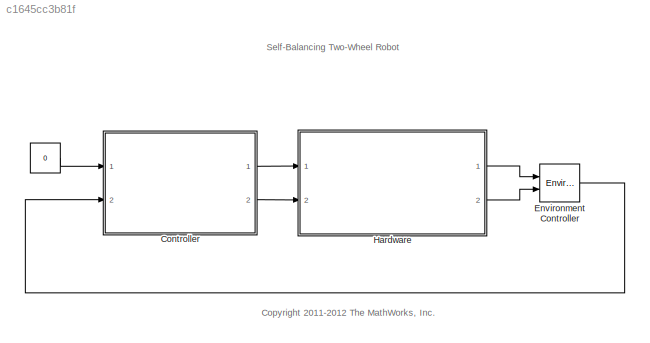
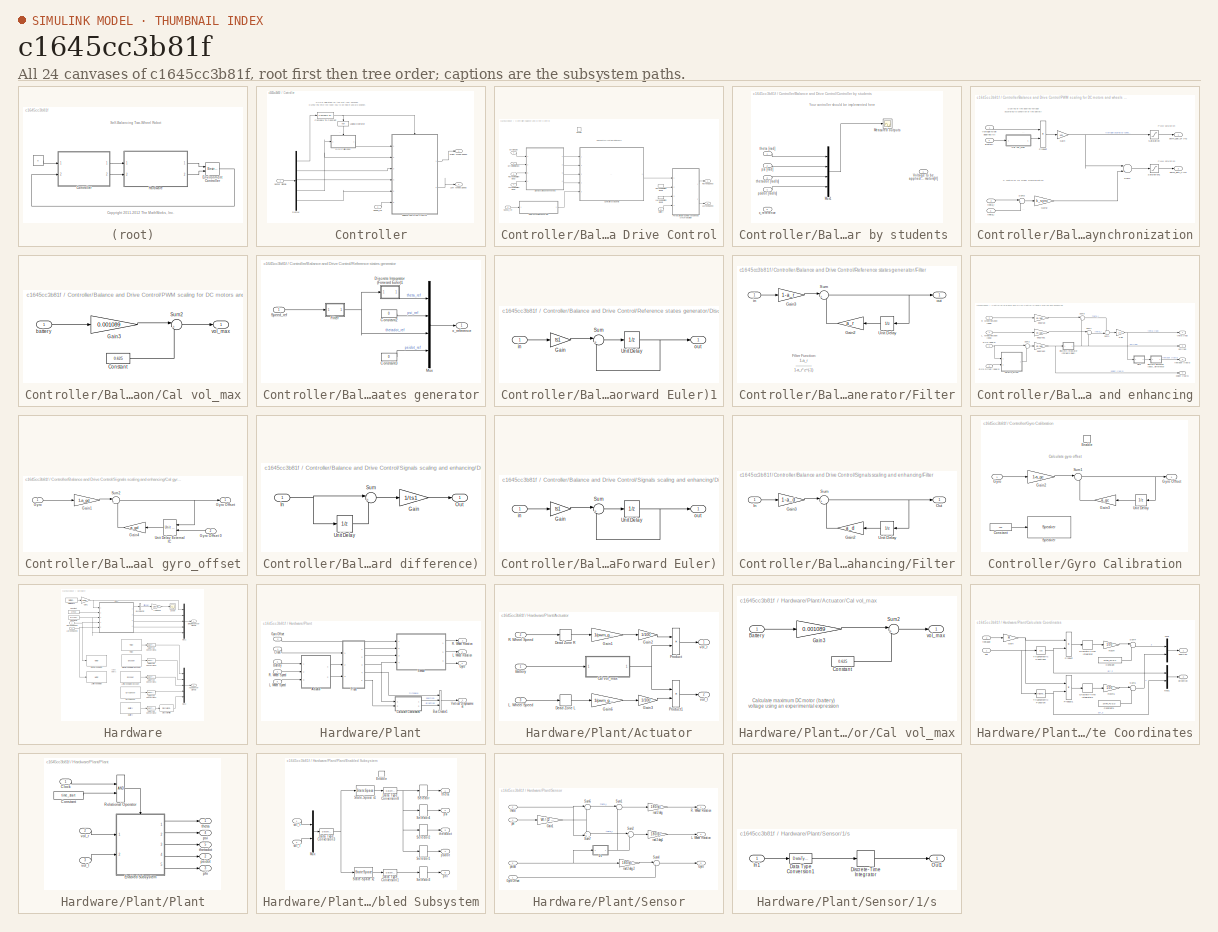
[diagram: thumbnail index - all 24 canvases of the model, root first then tree order]
MODEL slx_c1645cc3b81f
KIND model
BLOCK [Constant]       
  OutDataTypeStr = single
  SampleTime = 4*TS
  Value = 0
BLOCK [SubSystem] Controller
  Ports = [2, 2]
  RequestExecContextInheritance = off
  TreatAsAtomicUnit = on
BLOCK [SubSystem] Controller/Balance and Drive Control
  Ports = [6, 2, 1]
  RequestExecContextInheritance = off
BLOCK [Inport] Controller/Balance and Drive Control/Battery
  IconDisplay = Port number
  Port = 5
BLOCK [SubSystem] Controller/Balance and Drive Control/Controller by students 
  Ports = [5, 1]
  RequestExecContextInheritance = off
BLOCK [Scope] Controller/Balance and Drive Control/Controller by students /Measured outputs
  Floating = off
  NumInputPorts = 1
  Ports = [1]
  SaveName = ScopeData2
  ShowLegends = off
BLOCK [Mux] Controller/Balance and Drive Control/Controller by students /Mux1
  DisplayOption = bar
  Ports = [4, 1]
BLOCK [Outport] Controller/Balance and Drive Control/Controller by students /Voltage to be applied on both motors[V]
  IconDisplay = Port number
BLOCK [Inport] Controller/Balance and Drive Control/Controller by students /psi [rad]
  IconDisplay = Port number
  Port = 2
BLOCK [Inport] Controller/Balance and Drive Control/Controller by students /psidot [rad//s]
  IconDisplay = Port number
  Port = 4
BLOCK [Inport] Controller/Balance and Drive Control/Controller by students /theta [rad]
  IconDisplay = Port number
BLOCK [Inport] Controller/Balance and Drive Control/Controller by students /thetadot [rad//s]
  IconDisplay = Port number
  Port = 3
BLOCK [Inport] Controller/Balance and Drive Control/Controller by students /x_reference
  IconDisplay = Port number
  Port = 5
BLOCK [EnablePort] Controller/Balance and Drive Control/Enable
  Ports = []
BLOCK [Inport] Controller/Balance and Drive Control/Gyro Offset [deg//s]
  IconDisplay = Port number
BLOCK [Inport] Controller/Balance and Drive Control/Gyro [deg//s]
  IconDisplay = Port number
  Port = 2
BLOCK [Inport] Controller/Balance and Drive Control/L. Wheel Rotation [deg]
  IconDisplay = Port number
  Port = 4
BLOCK [InportShadow] Controller/Balance and Drive Control/L. Wheel Rotation [deg]1
  IconDisplay = Port number
  Port = 4
BLOCK [Outport] Controller/Balance and Drive Control/L. Wheel Speed
  IconDisplay = Port number
  Port = 2
BLOCK [SubSystem] Controller/Balance and Drive Control/PWM scaling for DC motors and wheels synchronization
  Ports = [4, 2]
  RequestExecContextInheritance = off
BLOCK [Inport] Controller/Balance and Drive Control/PWM scaling for DC motors and wheels synchronization/Battery
  IconDisplay = Port number
  Port = 4
BLOCK [SubSystem] Controller/Balance and Drive Control/PWM scaling for DC motors and wheels synchronization/Cal vol_max
  Ports = [1, 1]
  RequestExecContextInheritance = off
BLOCK [Constant] Controller/Balance and Drive Control/PWM scaling for DC motors and wheels synchronization/Cal vol_max/Constant
  AttributesFormatString = DataType = %<OutDataTypeStr>
  OutDataTypeStr = single
  Value = 0.625
BLOCK [Gain] Controller/Balance and Drive Control/PWM scaling for DC motors and wheels synchronization/Cal vol_max/Gain3
  Gain = 0.001089
  SaturateOnIntegerOverflow = off
BLOCK [Sum] Controller/Balance and Drive Control/PWM scaling for DC motors and wheels synchronization/Cal vol_max/Sum2
  IconShape = round
  InputSameDT = off
  Inputs = |+-
  Ports = [2, 1]
  SaturateOnIntegerOverflow = off
BLOCK [Inport] Controller/Balance and Drive Control/PWM scaling for DC motors and wheels synchronization/Cal vol_max/battery
  IconDisplay = Port number
BLOCK [Outport] Controller/Balance and Drive Control/PWM scaling for DC motors and wheels synchronization/Cal vol_max/vol_max
  IconDisplay = Port number
BLOCK [Gain] Controller/Balance and Drive Control/PWM scaling for DC motors and wheels synchronization/Gain
  Gain = 100
  SaturateOnIntegerOverflow = off
BLOCK [Gain] Controller/Balance and Drive Control/PWM scaling for DC motors and wheels synchronization/Gain2
  Gain = k_sync
  SaturateOnIntegerOverflow = off
BLOCK [Product] Controller/Balance and Drive Control/PWM scaling for DC motors and wheels synchronization/Product
  InputSameDT = off
  Inputs = */
  Ports = [2, 1]
  RndMeth = Simplest
  SaturateOnIntegerOverflow = off
BLOCK [Saturate] Controller/Balance and Drive Control/PWM scaling for DC motors and wheels synchronization/Saturation
  AttributesFormatString = max = %<UpperLimit>\nmin = %<LowerLimit>
  InputPortMap = u0
  LowerLimit = -100
  Ports = [1, 1]
  UpperLimit = 100
BLOCK [Saturate] Controller/Balance and Drive Control/PWM scaling for DC motors and wheels synchronization/Saturation1
  AttributesFormatString = max = %<UpperLimit>\nmin = %<LowerLimit>
  InputPortMap = u0
  LowerLimit = -100
  Ports = [1, 1]
  UpperLimit = 100
BLOCK [Sum] Controller/Balance and Drive Control/PWM scaling for DC motors and wheels synchronization/Sum1
  InputSameDT = off
  Inputs = |++
  Ports = [2, 1]
  SaturateOnIntegerOverflow = off
BLOCK [Sum] Controller/Balance and Drive Control/PWM scaling for DC motors and wheels synchronization/Sum2
  IconShape = round
  InputSameDT = off
  Inputs = |+-
  Ports = [2, 1]
  SaturateOnIntegerOverflow = off
BLOCK [Inport] Controller/Balance and Drive Control/PWM scaling for DC motors and wheels synchronization/Voltage to be applied [V]
  IconDisplay = Port number
BLOCK [Outport] Controller/Balance and Drive Control/PWM scaling for DC motors and wheels synchronization/pwm_duty_L [%]
  IconDisplay = Port number
  Port = 2
BLOCK [Outport] Controller/Balance and Drive Control/PWM scaling for DC motors and wheels synchronization/pwm_duty_R [%]
  IconDisplay = Port number
BLOCK [Inport] Controller/Balance and Drive Control/PWM scaling for DC motors and wheels synchronization/theta_l
  IconDisplay = Port number
  Port = 3
BLOCK [Inport] Controller/Balance and Drive Control/PWM scaling for DC motors and wheels synchronization/theta_r
  IconDisplay = Port number
  Port = 2
BLOCK [Inport] Controller/Balance and Drive Control/R. Wheel Rotation [deg]
  IconDisplay = Port number
  Port = 3
BLOCK [InportShadow] Controller/Balance and Drive Control/R. Wheel Rotation [deg]1
  IconDisplay = Port number
  Port = 3
BLOCK [Outport] Controller/Balance and Drive Control/R. Wheel Speed
  IconDisplay = Port number
BLOCK [SubSystem] Controller/Balance and Drive Control/Reference states generator
  Ports = [1, 1]
  RequestExecContextInheritance = off
BLOCK [Constant] Controller/Balance and Drive Control/Reference states generator/Constant2
  OutDataTypeStr = single
  Value = 0
  VectorParams1D = off
BLOCK [Constant] Controller/Balance and Drive Control/Reference states generator/Constant3
  OutDataTypeStr = single
  Value = 0
  VectorParams1D = off
BLOCK [SubSystem] Controller/Balance and Drive Control/Reference states generator/Discrete Integrator (Forward Euler)1
  Ports = [1, 1]
  RequestExecContextInheritance = off
BLOCK [Gain] Controller/Balance and Drive Control/Reference states generator/Discrete Integrator (Forward Euler)1/Gain
  Gain = ts1
  SaturateOnIntegerOverflow = off
BLOCK [Sum] Controller/Balance and Drive Control/Reference states generator/Discrete Integrator (Forward Euler)1/Sum
  IconShape = round
  InputSameDT = off
  Inputs = |++
  Ports = [2, 1]
  SaturateOnIntegerOverflow = off
BLOCK [UnitDelay] Controller/Balance and Drive Control/Reference states generator/Discrete Integrator (Forward Euler)1/Unit Delay
  SampleTime = -1
BLOCK [Inport] Controller/Balance and Drive Control/Reference states generator/Discrete Integrator (Forward Euler)1/in
  IconDisplay = Port number
BLOCK [Outport] Controller/Balance and Drive Control/Reference states generator/Discrete Integrator (Forward Euler)1/out
  IconDisplay = Port number
BLOCK [SubSystem] Controller/Balance and Drive Control/Reference states generator/Filter
  Ports = [1, 1]
  RequestExecContextInheritance = off
BLOCK [Gain] Controller/Balance and Drive Control/Reference states generator/Filter/Gain2
  Gain = a_r
  SaturateOnIntegerOverflow = off
BLOCK [Gain] Controller/Balance and Drive Control/Reference states generator/Filter/Gain3
  Gain = 1-a_r
  SaturateOnIntegerOverflow = off
BLOCK [Sum] Controller/Balance and Drive Control/Reference states generator/Filter/Sum
  IconShape = round
  InputSameDT = off
  Inputs = |++
  Ports = [2, 1]
  SaturateOnIntegerOverflow = off
BLOCK [UnitDelay] Controller/Balance and Drive Control/Reference states generator/Filter/Unit Delay
  SampleTime = -1
BLOCK [Inport] Controller/Balance and Drive Control/Reference states generator/Filter/in
  IconDisplay = Port number
BLOCK [Outport] Controller/Balance and Drive Control/Reference states generator/Filter/out
  IconDisplay = Port number
BLOCK [Mux] Controller/Balance and Drive Control/Reference states generator/Mux
  DisplayOption = bar
  Ports = [4, 1]
BLOCK [Inport] Controller/Balance and Drive Control/Reference states generator/Speed_ref
  IconDisplay = Port number
BLOCK [Outport] Controller/Balance and Drive Control/Reference states generator/x_reference
  IconDisplay = Port number
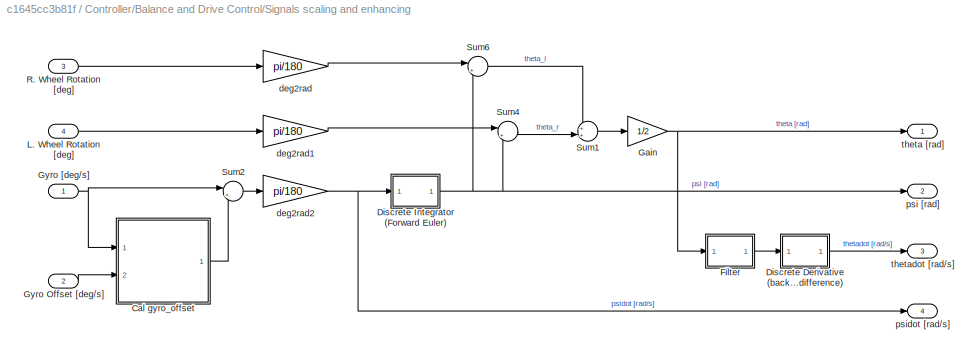
BLOCK [SubSystem] Controller/Balance and Drive Control/Signals scaling and enhancing
  Ports = [4, 4]
  RequestExecContextInheritance = off
BLOCK [SubSystem] Controller/Balance and Drive Control/Signals scaling and enhancing/Cal gyro_offset
  Ports = [2, 1]
  RequestExecContextInheritance = off
BLOCK [Gain] Controller/Balance and Drive Control/Signals scaling and enhancing/Cal gyro_offset/Gain1
  Gain = 1-a_gd
  SaturateOnIntegerOverflow = off
BLOCK [Gain] Controller/Balance and Drive Control/Signals scaling and enhancing/Cal gyro_offset/Gain4
  Gain = a_gd
  SaturateOnIntegerOverflow = off
BLOCK [Inport] Controller/Balance and Drive Control/Signals scaling and enhancing/Cal gyro_offset/Gyro
  IconDisplay = Port number
BLOCK [Outport] Controller/Balance and Drive Control/Signals scaling and enhancing/Cal gyro_offset/Gyro Offset
  IconDisplay = Port number
BLOCK [Inport] Controller/Balance and Drive Control/Signals scaling and enhancing/Cal gyro_offset/Gyro Offset 0
  IconDisplay = Port number
  Port = 2
BLOCK [Sum] Controller/Balance and Drive Control/Signals scaling and enhancing/Cal gyro_offset/Sum2
  IconShape = round
  InputSameDT = off
  Inputs = |++
  Ports = [2, 1]
  SaturateOnIntegerOverflow = off
BLOCK [Reference] Controller/Balance and Drive Control/Signals scaling and enhancing/Cal gyro_offset/Unit Delay External IC  REF=simulink/Additional Math
& Discrete/Additional
Discrete/Unit Delay
External IC
  Ports = [2, 1]
  SourceBlock = simulink/Additional Math\n& Discrete/Additional\nDiscrete/Unit Delay\nExternal IC
  SourceType = Unit Delay External Initial Condition
  tsamp = -1
BLOCK [SubSystem] Controller/Balance and Drive Control/Signals scaling and enhancing/Discrete Derivative (backward difference)
  Ports = [1, 1]
  RequestExecContextInheritance = off
BLOCK [Gain] Controller/Balance and Drive Control/Signals scaling and enhancing/Discrete Derivative (backward difference)/Gain
  Gain = 1/ts1
  SaturateOnIntegerOverflow = off
BLOCK [Inport] Controller/Balance and Drive Control/Signals scaling and enhancing/Discrete Derivative (backward difference)/In
  IconDisplay = Port number
BLOCK [Outport] Controller/Balance and Drive Control/Signals scaling and enhancing/Discrete Derivative (backward difference)/Out
  IconDisplay = Port number
BLOCK [Sum] Controller/Balance and Drive Control/Signals scaling and enhancing/Discrete Derivative (backward difference)/Sum
  IconShape = round
  InputSameDT = off
  Inputs = |+-
  Ports = [2, 1]
  SaturateOnIntegerOverflow = off
BLOCK [UnitDelay] Controller/Balance and Drive Control/Signals scaling and enhancing/Discrete Derivative (backward difference)/Unit Delay
  SampleTime = -1
BLOCK [SubSystem] Controller/Balance and Drive Control/Signals scaling and enhancing/Discrete Integrator (Forward Euler)
  Ports = [1, 1]
  RequestExecContextInheritance = off
BLOCK [Gain] Controller/Balance and Drive Control/Signals scaling and enhancing/Discrete Integrator (Forward Euler)/Gain
  Gain = ts1
  SaturateOnIntegerOverflow = off
BLOCK [Sum] Controller/Balance and Drive Control/Signals scaling and enhancing/Discrete Integrator (Forward Euler)/Sum
  IconShape = round
  InputSameDT = off
  Inputs = |++
  Ports = [2, 1]
  SaturateOnIntegerOverflow = off
BLOCK [UnitDelay] Controller/Balance and Drive Control/Signals scaling and enhancing/Discrete Integrator (Forward Euler)/Unit Delay
  SampleTime = -1
BLOCK [Inport] Controller/Balance and Drive Control/Signals scaling and enhancing/Discrete Integrator (Forward Euler)/in
  IconDisplay = Port number
BLOCK [Outport] Controller/Balance and Drive Control/Signals scaling and enhancing/Discrete Integrator (Forward Euler)/out
  IconDisplay = Port number
BLOCK [SubSystem] Controller/Balance and Drive Control/Signals scaling and enhancing/Filter
  Ports = [1, 1]
  RequestExecContextInheritance = off
BLOCK [Gain] Controller/Balance and Drive Control/Signals scaling and enhancing/Filter/Gain2
  Gain = a_d
  SaturateOnIntegerOverflow = off
BLOCK [Gain] Controller/Balance and Drive Control/Signals scaling and enhancing/Filter/Gain3
  Gain = 1-a_d
  SaturateOnIntegerOverflow = off
BLOCK [Inport] Controller/Balance and Drive Control/Signals scaling and enhancing/Filter/In
  IconDisplay = Port number
BLOCK [Outport] Controller/Balance and Drive Control/Signals scaling and enhancing/Filter/Out
  IconDisplay = Port number
BLOCK [Sum] Controller/Balance and Drive Control/Signals scaling and enhancing/Filter/Sum
  IconShape = round
  InputSameDT = off
  Inputs = |++
  Ports = [2, 1]
  SaturateOnIntegerOverflow = off
BLOCK [UnitDelay] Controller/Balance and Drive Control/Signals scaling and enhancing/Filter/Unit Delay
  SampleTime = -1
BLOCK [Gain] Controller/Balance and Drive Control/Signals scaling and enhancing/Gain
  Gain = 1/2
  SaturateOnIntegerOverflow = off
BLOCK [Inport] Controller/Balance and Drive Control/Signals scaling and enhancing/Gyro Offset [deg//s]
  IconDisplay = Port number
  Port = 2
BLOCK [Inport] Controller/Balance and Drive Control/Signals scaling and enhancing/Gyro [deg//s]
  IconDisplay = Port number
BLOCK [Inport] Controller/Balance and Drive Control/Signals scaling and enhancing/L. Wheel Rotation [deg]
  IconDisplay = Port number
  Port = 4
BLOCK [Inport] Controller/Balance and Drive Control/Signals scaling and enhancing/R. Wheel Rotation [deg]
  IconDisplay = Port number
  Port = 3
BLOCK [Sum] Controller/Balance and Drive Control/Signals scaling and enhancing/Sum1
  IconShape = round
  InputSameDT = off
  Inputs = ++|
  Ports = [2, 1]
  SaturateOnIntegerOverflow = off
BLOCK [Sum] Controller/Balance and Drive Control/Signals scaling and enhancing/Sum2
  IconShape = round
  InputSameDT = off
  Inputs = |+-
  Ports = [2, 1]
  SaturateOnIntegerOverflow = off
BLOCK [Sum] Controller/Balance and Drive Control/Signals scaling and enhancing/Sum4
  IconShape = round
  InputSameDT = off
  Inputs = |++
  Ports = [2, 1]
  SaturateOnIntegerOverflow = off
BLOCK [Sum] Controller/Balance and Drive Control/Signals scaling and enhancing/Sum6
  IconShape = round
  InputSameDT = off
  Inputs = |++
  Ports = [2, 1]
  SaturateOnIntegerOverflow = off
BLOCK [Gain] Controller/Balance and Drive Control/Signals scaling and enhancing/deg2rad
  Gain = pi/180
  SaturateOnIntegerOverflow = off
BLOCK [Gain] Controller/Balance and Drive Control/Signals scaling and enhancing/deg2rad1
  Gain = pi/180
  SaturateOnIntegerOverflow = off
BLOCK [Gain] Controller/Balance and Drive Control/Signals scaling and enhancing/deg2rad2
  Gain = pi/180
  SaturateOnIntegerOverflow = off
BLOCK [Outport] Controller/Balance and Drive Control/Signals scaling and enhancing/psi [rad]
  IconDisplay = Port number
  Port = 2
BLOCK [Outport] Controller/Balance and Drive Control/Signals scaling and enhancing/psidot [rad//s]
  IconDisplay = Port number
  Port = 4
BLOCK [Outport] Controller/Balance and Drive Control/Signals scaling and enhancing/theta [rad]
  IconDisplay = Port number
BLOCK [Outport] Controller/Balance and Drive Control/Signals scaling and enhancing/thetadot [rad//s]
  IconDisplay = Port number
  Port = 3
BLOCK [Inport] Controller/Balance and Drive Control/Speed_ref
  IconDisplay = Port number
  Port = 6
BLOCK [Reference] Controller/Compare To Constant  REF=simulink/Logic and Bit
Operations/Compare
To Constant
  OutDataTypeStr = boolean
  Ports = [1, 1]
  SourceBlock = simulink/Logic and Bit\nOperations/Compare\nTo Constant
  SourceType = Compare To Constant
  ZeroCross = on
  const = time_start
  relop = >=
BLOCK [Demux] Controller/Demux
  DisplayOption = bar
  Outputs = 5
  Ports = [1, 5]
BLOCK [SubSystem] Controller/Gyro Calibration
  Ports = [1, 1, 1]
  RequestExecContextInheritance = off
  TreatAsAtomicUnit = on
BLOCK [Constant] Controller/Gyro Calibration/Constant
  OutDataTypeStr = uint32
  SampleTime = 0.2
  Value = 440
BLOCK [EnablePort] Controller/Gyro Calibration/Enable
  Ports = []
BLOCK [Gain] Controller/Gyro Calibration/Gain2
  Gain = 1-a_gc
  SaturateOnIntegerOverflow = off
BLOCK [Gain] Controller/Gyro Calibration/Gain3
  Gain = a_gc
  SaturateOnIntegerOverflow = off
BLOCK [Inport] Controller/Gyro Calibration/Gyro
  IconDisplay = Port number
BLOCK [Outport] Controller/Gyro Calibration/Gyro Offset
  IconDisplay = Port number
BLOCK [Reference] Controller/Gyro Calibration/Speaker  REF=legonxtlib/Speaker
  Ports = [1]
  SourceBlock = legonxtlib/Speaker
  SourceType = LEGO MINDSTORMS NXT Speaker
  sinputMode = Frequency only
  sspeakerDuration = 100
  sspeakerFreq = 100
  sspeakerVolume = 10
BLOCK [Sum] Controller/Gyro Calibration/Sum1
  IconShape = round
  InputSameDT = off
  Inputs = |++
  Ports = [2, 1]
  SaturateOnIntegerOverflow = off
BLOCK [UnitDelay] Controller/Gyro Calibration/Unit Delay
  SampleTime = -1
BLOCK [Outport] Controller/Left Wheel Speed
  IconDisplay = Port number
  Port = 2
BLOCK [Logic] Controller/Logical Operator
  AllPortsSameDT = off
  Operator = NOT
  OutDataTypeStr = boolean
  Ports = [1, 1]
BLOCK [Outport] Controller/Right Wheel Speed
  IconDisplay = Port number
BLOCK [Inport] Controller/Sensor Signals
  IconDisplay = Port number
  Port = 2
BLOCK [Inport] Controller/Speed_ref
  IconDisplay = Port number
BLOCK [Reference] Environment Controller  REF=simulink/Signal
Routing/Environment
Controller
  Ports = [2, 1]
  SourceBlock = simulink/Signal\nRouting/Environment\nController
  SourceType = Environment Controller
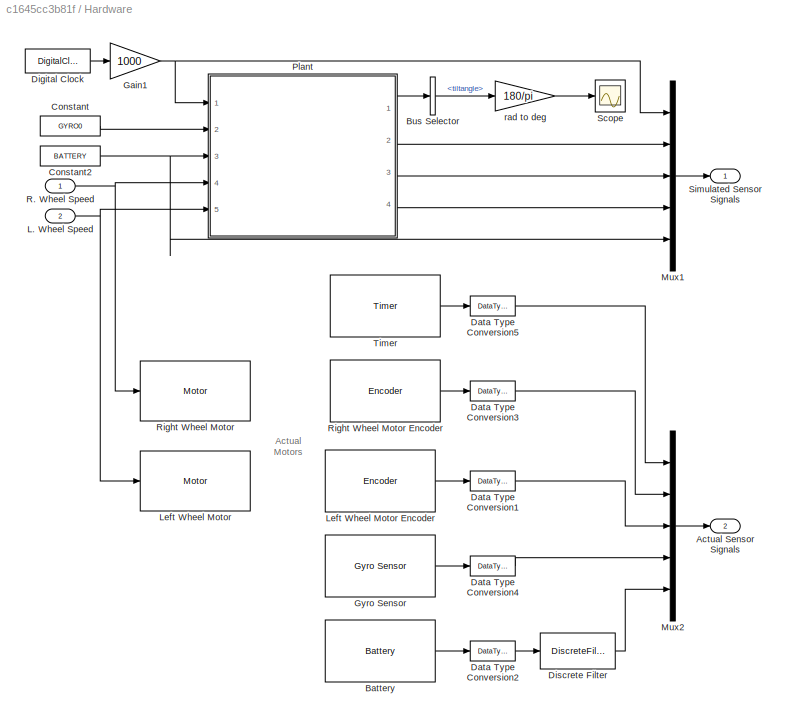
BLOCK [SubSystem] Hardware
  Ports = [2, 2]
  RequestExecContextInheritance = off
  VariantControl = DoSim
BLOCK [Outport] Hardware/Actual Sensor Signals
  IconDisplay = Port number
  Port = 2
BLOCK [Reference] Hardware/Battery  REF=legonxtlib/Battery
  Ports = [0, 1]
  SourceBlock = legonxtlib/Battery
  SourceType = LEGO MINDSTORMS NXT Battery
  sampleTime = ts1
BLOCK [BusSelector] Hardware/Bus Selector
  OutputSignals = tiltangle
  Ports = [1, 1]
BLOCK [Constant] Hardware/Constant
  OutDataTypeStr = single
  Value = GYRO0
BLOCK [Constant] Hardware/Constant2
  OutDataTypeStr = single
  Value = BATTERY
BLOCK [DataTypeConversion] Hardware/Data Type Conversion1
  OutDataTypeStr = single
  RndMeth = Simplest
  SaturateOnIntegerOverflow = off
BLOCK [DataTypeConversion] Hardware/Data Type Conversion2
  OutDataTypeStr = single
  RndMeth = Simplest
  SaturateOnIntegerOverflow = off
BLOCK [DataTypeConversion] Hardware/Data Type Conversion3
  OutDataTypeStr = single
  RndMeth = Simplest
  SaturateOnIntegerOverflow = off
BLOCK [DataTypeConversion] Hardware/Data Type Conversion4
  OutDataTypeStr = single
  RndMeth = Simplest
  SaturateOnIntegerOverflow = off
BLOCK [DataTypeConversion] Hardware/Data Type Conversion5
  OutDataTypeStr = single
  RndMeth = Simplest
  SaturateOnIntegerOverflow = off
BLOCK [DigitalClock] Hardware/Digital Clock
  SampleTime = 4*TS
BLOCK [DiscreteFilter] Hardware/Discrete Filter
  Denominator = [1 -a_b]
  InputPortMap = u0
  Numerator = [1-a_b]
  Ports = [1, 1]
BLOCK [Gain] Hardware/Gain1
  Gain = 1000
  OutDataTypeStr = single
  SaturateOnIntegerOverflow = off
BLOCK [Reference] Hardware/Gyro Sensor  REF=legonxtlib/Gyro Sensor
  Ports = [0, 1]
  SourceBlock = legonxtlib/Gyro Sensor
  SourceType = LEGO MINDSTORMS NXT Gyro Sensor
  offset = 600
  outputMode = Raw A/D (0 - 1023)
  portNumber = 4
  sampleTime = ts1
BLOCK [Inport] Hardware/L. Wheel Speed
  IconDisplay = Port number
  Port = 2
BLOCK [Reference] Hardware/Left Wheel Motor  REF=legonxtlib/Motor
  Ports = [1]
  SourceBlock = legonxtlib/Motor
  SourceType = LEGO MINDSTORMS NXT Motor
  sportNumber = C
  sstopAction = Brake
BLOCK [Reference] Hardware/Left Wheel Motor Encoder  REF=legonxtlib/Encoder
  Ports = [0, 1]
  SourceBlock = legonxtlib/Encoder
  SourceType = LEGO MINDSTORMS NXT Encoder
  opMode = No reset
  portNumber = C
  sampleTime = ts1
BLOCK [Mux] Hardware/Mux1
  DisplayOption = bar
  Inputs = 5
  Ports = [5, 1]
BLOCK [Mux] Hardware/Mux2
  DisplayOption = bar
  Inputs = 5
  Ports = [5, 1]
BLOCK [SubSystem] Hardware/Plant
  Ports = [5, 4]
  RequestExecContextInheritance = off
BLOCK [SubSystem] Hardware/Plant/Actuator
  Ports = [3, 2]
  RequestExecContextInheritance = off
BLOCK [Inport] Hardware/Plant/Actuator/Battery
  IconDisplay = Port number
BLOCK [SubSystem] Hardware/Plant/Actuator/Cal vol_max
  Ports = [1, 1]
  RequestExecContextInheritance = off
BLOCK [Inport] Hardware/Plant/Actuator/Cal vol_max/Battery
  IconDisplay = Port number
BLOCK [Constant] Hardware/Plant/Actuator/Cal vol_max/Constant
  OutDataTypeStr = single
  Value = 0.625
BLOCK [Gain] Hardware/Plant/Actuator/Cal vol_max/Gain3
  Gain = 0.001089
  SaturateOnIntegerOverflow = off
BLOCK [Sum] Hardware/Plant/Actuator/Cal vol_max/Sum2
  IconShape = round
  InputSameDT = off
  Inputs = |+-
  Ports = [2, 1]
  SaturateOnIntegerOverflow = off
BLOCK [Outport] Hardware/Plant/Actuator/Cal vol_max/vol_max
  IconDisplay = Port number
BLOCK [DeadZone] Hardware/Plant/Actuator/Dead Zone L
  AttributesFormatString = start=%<LowerValue>\nend=%<UpperValue>
  LowerValue = -pwm_offset
  UpperValue = pwm_offset
BLOCK [DeadZone] Hardware/Plant/Actuator/Dead Zone R
  AttributesFormatString = start=%<LowerValue>\nend=%<UpperValue>
  LowerValue = -pwm_offset
  UpperValue = pwm_offset
BLOCK [Gain] Hardware/Plant/Actuator/Gain1
  Gain = 1/pwm_gain
  SaturateOnIntegerOverflow = off
BLOCK [Gain] Hardware/Plant/Actuator/Gain2
  Gain = 1/100
  SaturateOnIntegerOverflow = off
BLOCK [Gain] Hardware/Plant/Actuator/Gain3
  Gain = 1/100
  SaturateOnIntegerOverflow = off
BLOCK [Gain] Hardware/Plant/Actuator/Gain6
  Gain = 1/pwm_gain
  SaturateOnIntegerOverflow = off
BLOCK [Inport] Hardware/Plant/Actuator/L. Wheel Speed
  IconDisplay = Port number
  Port = 3
BLOCK [Product] Hardware/Plant/Actuator/Product
  InputSameDT = off
  OutDataTypeStr = Inherit: Inherit via internal rule
  Ports = [2, 1]
  RndMeth = Simplest
  SaturateOnIntegerOverflow = off
BLOCK [Product] Hardware/Plant/Actuator/Product1
  InputSameDT = off
  OutDataTypeStr = Inherit: Inherit via internal rule
  Ports = [2, 1]
  RndMeth = Simplest
  SaturateOnIntegerOverflow = off
BLOCK [Inport] Hardware/Plant/Actuator/R. Wheel Speed
  IconDisplay = Port number
  Port = 2
BLOCK [Outport] Hardware/Plant/Actuator/vol_l
  IconDisplay = Port number
  Port = 2
BLOCK [Outport] Hardware/Plant/Actuator/vol_r
  IconDisplay = Port number
BLOCK [Inport] Hardware/Plant/Battery
  IconDisplay = Port number
  Port = 3
BLOCK [BusCreator] Hardware/Plant/Bus Creator1
  DisplayOption = bar
  Inputs = 3
  Ports = [3, 1]
BLOCK [SubSystem] Hardware/Plant/Calculate Coordinates
  Ports = [2, 2]
  RequestExecContextInheritance = off
BLOCK [Constant] Hardware/Plant/Calculate Coordinates/Constant
  AttributesFormatString = DataType = %<OutDataTypeStr>
  OutDataTypeStr = double
  Value = START_POS(1)
BLOCK [Constant] Hardware/Plant/Calculate Coordinates/Constant1
  AttributesFormatString = DataType = %<OutDataTypeStr>
  OutDataTypeStr = double
  Value = START_POS(2)
BLOCK [DiscreteIntegrator] Hardware/Plant/Calculate Coordinates/Discrete-Time Integrator
  ICPrevOutput = DiscIntNeverNeededParam
  ICPrevScaledInput = DiscIntNeverNeededParam
  Ports = [1, 1]
  SampleTime = 4*TS
BLOCK [DiscreteIntegrator] Hardware/Plant/Calculate Coordinates/Discrete-Time Integrator1
  ICPrevOutput = DiscIntNeverNeededParam
  ICPrevScaledInput = DiscIntNeverNeededParam
  Ports = [1, 1]
  SampleTime = 4*TS
BLOCK [Gain] Hardware/Plant/Calculate Coordinates/Gain
  Gain = R
  OutDataTypeStr = Inherit: Inherit via internal rule
  ParamDataTypeStr = Inherit: Inherit via internal rule
  SaturateOnIntegerOverflow = off
BLOCK [Mux] Hardware/Plant/Calculate Coordinates/Mux
  DisplayOption = bar
  Inputs = 2
  Ports = [2, 1]
BLOCK [Mux] Hardware/Plant/Calculate Coordinates/Mux1
  DisplayOption = bar
  Inputs = 2
  Ports = [2, 1]
BLOCK [Product] Hardware/Plant/Calculate Coordinates/Product
  InputSameDT = off
  OutDataTypeStr = double
  Ports = [2, 1]
  RndMeth = Simplest
  SaturateOnIntegerOverflow = off
BLOCK [Product] Hardware/Plant/Calculate Coordinates/Product1
  InputSameDT = off
  OutDataTypeStr = double
  Ports = [2, 1]
  RndMeth = Simplest
  SaturateOnIntegerOverflow = off
BLOCK [Sum] Hardware/Plant/Calculate Coordinates/Sum1
  IconShape = round
  InputSameDT = off
  Inputs = |++
  OutDataTypeStr = Inherit: Inherit via internal rule
  Ports = [2, 1]
  SaturateOnIntegerOverflow = off
BLOCK [Sum] Hardware/Plant/Calculate Coordinates/Sum4
  IconShape = round
  InputSameDT = off
  Inputs = |++
  OutDataTypeStr = Inherit: Inherit via internal rule
  Ports = [2, 1]
  SaturateOnIntegerOverflow = off
BLOCK [Trigonometry] Hardware/Plant/Calculate Coordinates/Trigonometric Function
  Ports = [1, 1]
BLOCK [Trigonometry] Hardware/Plant/Calculate Coordinates/Trigonometric Function1
  Operator = cos
  Ports = [1, 1]
BLOCK [Outport] Hardware/Plant/Calculate Coordinates/direction
  IconDisplay = Port number
  Port = 2
BLOCK [Gain] Hardware/Plant/Calculate Coordinates/m2cm
  Gain = 100
  OutDataTypeStr = Inherit: Inherit via internal rule
  ParamDataTypeStr = Inherit: Inherit via internal rule
  SaturateOnIntegerOverflow = off
BLOCK [Gain] Hardware/Plant/Calculate Coordinates/m2cm1
  Gain = 100
  OutDataTypeStr = Inherit: Inherit via internal rule
  ParamDataTypeStr = Inherit: Inherit via internal rule
  SaturateOnIntegerOverflow = off
BLOCK [Inport] Hardware/Plant/Calculate Coordinates/phi
  IconDisplay = Port number
BLOCK [Outport] Hardware/Plant/Calculate Coordinates/position
  IconDisplay = Port number
BLOCK [Inport] Hardware/Plant/Calculate Coordinates/thetadot
  IconDisplay = Port number
  Port = 2
BLOCK [Inport] Hardware/Plant/Clock
  IconDisplay = Port number
BLOCK [Outport] Hardware/Plant/Gyro
  IconDisplay = Port number
  Port = 4
BLOCK [Inport] Hardware/Plant/Gyro Offset
  IconDisplay = Port number
  Port = 2
BLOCK [Outport] Hardware/Plant/L. Wheel Rotation
  IconDisplay = Port number
  Port = 3
BLOCK [Inport] Hardware/Plant/L. Wheel Speed
  IconDisplay = Port number
  Port = 5
BLOCK [SubSystem] Hardware/Plant/Plant
  Ports = [3, 5]
  RequestExecContextInheritance = off
BLOCK [Inport] Hardware/Plant/Plant/Clock
  IconDisplay = Port number
BLOCK [Constant] Hardware/Plant/Plant/Constant
  OutDataTypeStr = single
  Value = time_start
BLOCK [SubSystem] Hardware/Plant/Plant/Enabled Subsystem
  MinAlgLoopOccurrences = on
  Ports = [2, 5, 1]
  RequestExecContextInheritance = off
  TreatAsAtomicUnit = on
BLOCK [DataTypeConversion] Hardware/Plant/Plant/Enabled Subsystem/Data Type Conversion1
  OutDataTypeStr = single
  RndMeth = Nearest
  SaturateOnIntegerOverflow = off
BLOCK [DataTypeConversion] Hardware/Plant/Plant/Enabled Subsystem/Data Type Conversion3
  OutDataTypeStr = double
  RndMeth = Nearest
  SaturateOnIntegerOverflow = off
BLOCK [DataTypeConversion] Hardware/Plant/Plant/Enabled Subsystem/Data Type Conversion8
  OutDataTypeStr = single
  RndMeth = Nearest
  SaturateOnIntegerOverflow = off
BLOCK [EnablePort] Hardware/Plant/Plant/Enabled Subsystem/Enable
  Ports = []
BLOCK [Mux] Hardware/Plant/Plant/Enabled Subsystem/Mux
  DisplayOption = bar
  Inputs = 2
  Ports = [2, 1]
BLOCK [Selector] Hardware/Plant/Plant/Enabled Subsystem/Selector
  InputPortWidth = 4
  Ports = [1, 1]
BLOCK [Selector] Hardware/Plant/Plant/Enabled Subsystem/Selector1
  Indices = 4
  InputPortWidth = 4
  Ports = [1, 1]
BLOCK [Selector] Hardware/Plant/Plant/Enabled Subsystem/Selector2
  Indices = 3
  InputPortWidth = 4
  Ports = [1, 1]
BLOCK [Selector] Hardware/Plant/Plant/Enabled Subsystem/Selector3
  InputPortWidth = 2
  Ports = [1, 1]
BLOCK [Selector] Hardware/Plant/Plant/Enabled Subsystem/Selector4
  Indices = 2
  InputPortWidth = 4
  Ports = [1, 1]
BLOCK [StateSpace] Hardware/Plant/Plant/Enabled Subsystem/State-Space x1
  A = A1
  B = B1
  C = C1
  D = D1
  Ports = [1, 1]
  X0 = X1IV
BLOCK [StateSpace] Hardware/Plant/Plant/Enabled Subsystem/State-Space x2
  A = A2
  B = B2
  C = C2
  D = D2
  Ports = [1, 1]
  X0 = X2IV
BLOCK [Outport] Hardware/Plant/Plant/Enabled Subsystem/phi
  IconDisplay = Port number
  InitialOutput = 0
  Port = 5
BLOCK [Outport] Hardware/Plant/Plant/Enabled Subsystem/psi
  IconDisplay = Port number
  InitialOutput = 0
  Port = 2
BLOCK [Outport] Hardware/Plant/Plant/Enabled Subsystem/psidot
  IconDisplay = Port number
  InitialOutput = 0
  Port = 4
BLOCK [Outport] Hardware/Plant/Plant/Enabled Subsystem/theta
  IconDisplay = Port number
  InitialOutput = 0
BLOCK [Outport] Hardware/Plant/Plant/Enabled Subsystem/thetadot
  IconDisplay = Port number
  InitialOutput = 0
  Port = 3
BLOCK [Inport] Hardware/Plant/Plant/Enabled Subsystem/vol_l
  IconDisplay = Port number
  Port = 2
BLOCK [Inport] Hardware/Plant/Plant/Enabled Subsystem/vol_r
  IconDisplay = Port number
BLOCK [RelationalOperator] Hardware/Plant/Plant/Relational Operator
  InputSameDT = off
  OutDataTypeStr = boolean
  Ports = [2, 1]
BLOCK [Outport] Hardware/Plant/Plant/phi
  IconDisplay = Port number
  Port = 3
BLOCK [Outport] Hardware/Plant/Plant/psi
  IconDisplay = Port number
  Port = 4
BLOCK [Outport] Hardware/Plant/Plant/psidot
  IconDisplay = Port number
  Port = 2
BLOCK [Outport] Hardware/Plant/Plant/theta
  IconDisplay = Port number
BLOCK [Outport] Hardware/Plant/Plant/thetadot
  IconDisplay = Port number
  Port = 5
BLOCK [Inport] Hardware/Plant/Plant/vol_l
  IconDisplay = Port number
  Port = 3
BLOCK [Inport] Hardware/Plant/Plant/vol_r
  IconDisplay = Port number
  Port = 2
BLOCK [Outport] Hardware/Plant/R. Wheel Rotation
  IconDisplay = Port number
  Port = 2
BLOCK [Inport] Hardware/Plant/R. Wheel Speed
  IconDisplay = Port number
  Port = 4
BLOCK [SubSystem] Hardware/Plant/Sensor
  Ports = [4, 3]
  RequestExecContextInheritance = off
BLOCK [SubSystem] Hardware/Plant/Sensor/1//s
  Ports = [1, 1]
  RequestExecContextInheritance = off
  ShowPortLabels = SignalName
BLOCK [DataTypeConversion] Hardware/Plant/Sensor/1//s/Data Type Conversion1
  AttributesFormatString = Round = %<RndMeth>
  OutDataTypeStr = double
  RndMeth = Nearest
  SaturateOnIntegerOverflow = off
BLOCK [DiscreteIntegrator] Hardware/Plant/Sensor/1//s/Discrete-Time Integrator
  ICPrevOutput = DiscIntNeverNeededParam
  ICPrevScaledInput = DiscIntNeverNeededParam
  Ports = [1, 1]
  SampleTime = 4*TS
  gainval = 1
BLOCK [Inport] Hardware/Plant/Sensor/1//s/In1
  IconDisplay = Port number
BLOCK [Outport] Hardware/Plant/Sensor/1//s/Out1
  IconDisplay = Port number
BLOCK [Gain] Hardware/Plant/Sensor/Gain1
  Gain = W / (2 * R)
  OutDataTypeStr = Inherit: Inherit via internal rule
  ParamDataTypeStr = Inherit: Inherit via internal rule
  SaturateOnIntegerOverflow = off
BLOCK [Outport] Hardware/Plant/Sensor/Gyro
  IconDisplay = Port number
  Port = 3
BLOCK [Inport] Hardware/Plant/Sensor/Gyro Offset
  IconDisplay = Port number
BLOCK [Outport] Hardware/Plant/Sensor/L. Wheel Rotation
  IconDisplay = Port number
  Port = 2
BLOCK [Outport] Hardware/Plant/Sensor/R. Wheel Rotation
  IconDisplay = Port number
BLOCK [Sum] Hardware/Plant/Sensor/Sum1
  IconShape = round
  InputSameDT = off
  Inputs = |+-
  OutDataTypeStr = Inherit: Inherit via internal rule
  Ports = [2, 1]
  SaturateOnIntegerOverflow = off
BLOCK [Sum] Hardware/Plant/Sensor/Sum2
  IconShape = round
  InputSameDT = off
  Inputs = |+-
  OutDataTypeStr = Inherit: Inherit via internal rule
  Ports = [2, 1]
  SaturateOnIntegerOverflow = off
BLOCK [Sum] Hardware/Plant/Sensor/Sum4
  IconShape = round
  InputSameDT = off
  Inputs = |++
  OutDataTypeStr = Inherit: Inherit via internal rule
  Ports = [2, 1]
  SaturateOnIntegerOverflow = off
BLOCK [Sum] Hardware/Plant/Sensor/Sum6
  IconShape = round
  InputSameDT = off
  Inputs = |+-
  OutDataTypeStr = Inherit: Inherit via internal rule
  Ports = [2, 1]
  SaturateOnIntegerOverflow = off
BLOCK [Sum] Hardware/Plant/Sensor/Sum7
  IconShape = round
  InputSameDT = off
  Inputs = ++|
  OutDataTypeStr = Inherit: Inherit via internal rule
  Ports = [2, 1]
  SaturateOnIntegerOverflow = off
BLOCK [Inport] Hardware/Plant/Sensor/phi
  IconDisplay = Port number
  Port = 4
BLOCK [Inport] Hardware/Plant/Sensor/psidot
  IconDisplay = Port number
  Port = 3
BLOCK [Gain] Hardware/Plant/Sensor/rad 2 deg
  Gain = 180/pi
  OutDataTypeStr = single
  ParamDataTypeStr = Inherit: Inherit via internal rule
  SaturateOnIntegerOverflow = off
BLOCK [Gain] Hardware/Plant/Sensor/rad 2 deg 2
  Gain = 180/pi
  OutDataTypeStr = Inherit: Inherit via internal rule
  ParamDataTypeStr = Inherit: Inherit via internal rule
  SaturateOnIntegerOverflow = off
BLOCK [Gain] Hardware/Plant/Sensor/rad 2 deg1
  Gain = 180/pi
  OutDataTypeStr = single
  ParamDataTypeStr = Inherit: Inherit via internal rule
  SaturateOnIntegerOverflow = off
BLOCK [Inport] Hardware/Plant/Sensor/theta
  IconDisplay = Port number
  Port = 2
BLOCK [Outport] Hardware/Plant/Vertical Displacement
  IconDisplay = Port number
BLOCK [Inport] Hardware/R. Wheel Speed
  IconDisplay = Port number
BLOCK [Reference] Hardware/Right Wheel Motor  REF=legonxtlib/Motor
  Ports = [1]
  SourceBlock = legonxtlib/Motor
  SourceType = LEGO MINDSTORMS NXT Motor
  sportNumber = B
  sstopAction = Brake
BLOCK [Reference] Hardware/Right Wheel Motor Encoder  REF=legonxtlib/Encoder
  Ports = [0, 1]
  SourceBlock = legonxtlib/Encoder
  SourceType = LEGO MINDSTORMS NXT Encoder
  opMode = No reset
  portNumber = B
  sampleTime = ts1
BLOCK [Scope] Hardware/Scope
  DataFormat = StructureWithTime
  Floating = off
  LimitDataPoints = off
  NumInputPorts = 1
  Ports = [1]
  SampleTime = 0
  ShowLegends = off
  YMax = 8
  YMin = -8
  ZoomMode = yonly
BLOCK [Outport] Hardware/Simulated Sensor Signals
  IconDisplay = Port number
BLOCK [Reference] Hardware/Timer  REF=legonxtlib/Timer
  Ports = [0, 1]
  SourceBlock = legonxtlib/Timer
  SourceType = LEGO MINDSTORMS NXT Timer
  sampleTime = ts1
BLOCK [Gain] Hardware/rad to deg
  Gain = 180/pi
  OutDataTypeStr = Inherit: Inherit via internal rule
  ParamDataTypeStr = Inherit: Inherit via internal rule
  SaturateOnIntegerOverflow = off
ANNOTATION (root): <copyright redacted>
ANNOTATION (root): Self-Balancing Two-Wheel Robot
ANNOTATION Controller: Gyro is calibrating for the first four seconds. During this time the robot has to be held in upward position.
ANNOTATION Controller/Balance and Drive Control: Implement your controller into this block
ANNOTATION Controller/Balance and Drive Control/Controller by students : Your controller should be implemented here
ANNOTATION Controller/Balance and Drive Control/PWM scaling for DC motors and wheels synchronization: P controller for wheel synchronization
ANNOTATION Controller/Balance and Drive Control/PWM scaling for DC motors and wheels synchronization: PWM saturation
ANNOTATION Controller/Balance and Drive Control/PWM scaling for DC motors and wheels synchronization: Scaling of the applied voltage according to condition of the battery
ANNOTATION Controller/Balance and Drive Control/Reference states generator/Filter: Filter Function: 1-a_r ---------------- 1-a_r*z^(-1)
ANNOTATION Controller/Gyro Calibration: Calculate gyro offset
ANNOTATION Hardware: Actual Motors
ANNOTATION Hardware/Plant/Actuator/Cal vol_max: Calculate maximum DC motor (battery) voltage using an experimental expression
LINE       :1 -> Controller:1
LINE Controller/Balance and Drive Control/Battery:1 -> Controller/Balance and Drive Control/PWM scaling for DC motors and wheels synchronization:4
LINE Controller/Balance and Drive Control/Controller by students /Mux1:1 -> Controller/Balance and Drive Control/Controller by students /Measured outputs:1
LINE Controller/Balance and Drive Control/Controller by students /psi [rad]:1 -> Controller/Balance and Drive Control/Controller by students /Mux1:2
LINE Controller/Balance and Drive Control/Controller by students /psidot [rad//s]:1 -> Controller/Balance and Drive Control/Controller by students /Mux1:4
LINE Controller/Balance and Drive Control/Controller by students /theta [rad]:1 -> Controller/Balance and Drive Control/Controller by students /Mux1:1
LINE Controller/Balance and Drive Control/Controller by students /thetadot [rad//s]:1 -> Controller/Balance and Drive Control/Controller by students /Mux1:3
LINE Controller/Balance and Drive Control/Controller by students :1 -> Controller/Balance and Drive Control/PWM scaling for DC motors and wheels synchronization:1
LINE Controller/Balance and Drive Control/Gyro Offset [deg//s]:1 -> Controller/Balance and Drive Control/Signals scaling and enhancing:2
LINE Controller/Balance and Drive Control/Gyro [deg//s]:1 -> Controller/Balance and Drive Control/Signals scaling and enhancing:1
LINE Controller/Balance and Drive Control/L. Wheel Rotation [deg]1:1 -> Controller/Balance and Drive Control/PWM scaling for DC motors and wheels synchronization:3
LINE Controller/Balance and Drive Control/L. Wheel Rotation [deg]:1 -> Controller/Balance and Drive Control/Signals scaling and enhancing:4
LINE Controller/Balance and Drive Control/PWM scaling for DC motors and wheels synchronization/Battery:1 -> Controller/Balance and Drive Control/PWM scaling for DC motors and wheels synchronization/Cal vol_max:1
LINE Controller/Balance and Drive Control/PWM scaling for DC motors and wheels synchronization/Cal vol_max/Constant:1 -> Controller/Balance and Drive Control/PWM scaling for DC motors and wheels synchronization/Cal vol_max/Sum2:2
LINE Controller/Balance and Drive Control/PWM scaling for DC motors and wheels synchronization/Cal vol_max/Gain3:1 -> Controller/Balance and Drive Control/PWM scaling for DC motors and wheels synchronization/Cal vol_max/Sum2:1
LINE Controller/Balance and Drive Control/PWM scaling for DC motors and wheels synchronization/Cal vol_max/Sum2:1 -> Controller/Balance and Drive Control/PWM scaling for DC motors and wheels synchronization/Cal vol_max/vol_max:1
LINE Controller/Balance and Drive Control/PWM scaling for DC motors and wheels synchronization/Cal vol_max/battery:1 -> Controller/Balance and Drive Control/PWM scaling for DC motors and wheels synchronization/Cal vol_max/Gain3:1
LINE Controller/Balance and Drive Control/PWM scaling for DC motors and wheels synchronization/Cal vol_max:1 -> Controller/Balance and Drive Control/PWM scaling for DC motors and wheels synchronization/Product:2
LINE Controller/Balance and Drive Control/PWM scaling for DC motors and wheels synchronization/Gain2:1 -> Controller/Balance and Drive Control/PWM scaling for DC motors and wheels synchronization/Sum1:2
NET Controller/Balance and Drive Control/PWM scaling for DC motors and wheels synchronization/Gain:1 -> Controller/Balance and Drive Control/PWM scaling for DC motors and wheels synchronization/Saturation:1, Controller/Balance and Drive Control/PWM scaling for DC motors and wheels synchronization/Sum1:1
LINE Controller/Balance and Drive Control/PWM scaling for DC motors and wheels synchronization/Product:1 -> Controller/Balance and Drive Control/PWM scaling for DC motors and wheels synchronization/Gain:1
LINE Controller/Balance and Drive Control/PWM scaling for DC motors and wheels synchronization/Saturation1:1 -> Controller/Balance and Drive Control/PWM scaling for DC motors and wheels synchronization/pwm_duty_L [%]:1
LINE Controller/Balance and Drive Control/PWM scaling for DC motors and wheels synchronization/Saturation:1 -> Controller/Balance and Drive Control/PWM scaling for DC motors and wheels synchronization/pwm_duty_R [%]:1
LINE Controller/Balance and Drive Control/PWM scaling for DC motors and wheels synchronization/Sum1:1 -> Controller/Balance and Drive Control/PWM scaling for DC motors and wheels synchronization/Saturation1:1
LINE Controller/Balance and Drive Control/PWM scaling for DC motors and wheels synchronization/Sum2:1 -> Controller/Balance and Drive Control/PWM scaling for DC motors and wheels synchronization/Gain2:1
LINE Controller/Balance and Drive Control/PWM scaling for DC motors and wheels synchronization/Voltage to be applied [V]:1 -> Controller/Balance and Drive Control/PWM scaling for DC motors and wheels synchronization/Product:1
LINE Controller/Balance and Drive Control/PWM scaling for DC motors and wheels synchronization/theta_l:1 -> Controller/Balance and Drive Control/PWM scaling for DC motors and wheels synchronization/Sum2:2
LINE Controller/Balance and Drive Control/PWM scaling for DC motors and wheels synchronization/theta_r:1 -> Controller/Balance and Drive Control/PWM scaling for DC motors and wheels synchronization/Sum2:1
LINE Controller/Balance and Drive Control/PWM scaling for DC motors and wheels synchronization:1 -> Controller/Balance and Drive Control/R. Wheel Speed:1
LINE Controller/Balance and Drive Control/PWM scaling for DC motors and wheels synchronization:2 -> Controller/Balance and Drive Control/L. Wheel Speed:1
LINE Controller/Balance and Drive Control/R. Wheel Rotation [deg]1:1 -> Controller/Balance and Drive Control/PWM scaling for DC motors and wheels synchronization:2
LINE Controller/Balance and Drive Control/R. Wheel Rotation [deg]:1 -> Controller/Balance and Drive Control/Signals scaling and enhancing:3
LINE Controller/Balance and Drive Control/Reference states generator/Constant2:1 -> Controller/Balance and Drive Control/Reference states generator/Mux:2
LINE Controller/Balance and Drive Control/Reference states generator/Constant3:1 -> Controller/Balance and Drive Control/Reference states generator/Mux:4
LINE Controller/Balance and Drive Control/Reference states generator/Discrete Integrator (Forward Euler)1/Gain:1 -> Controller/Balance and Drive Control/Reference states generator/Discrete Integrator (Forward Euler)1/Sum:1
LINE Controller/Balance and Drive Control/Reference states generator/Discrete Integrator (Forward Euler)1/Sum:1 -> Controller/Balance and Drive Control/Reference states generator/Discrete Integrator (Forward Euler)1/Unit Delay:1
NET Controller/Balance and Drive Control/Reference states generator/Discrete Integrator (Forward Euler)1/Unit Delay:1 -> Controller/Balance and Drive Control/Reference states generator/Discrete Integrator (Forward Euler)1/Sum:2, Controller/Balance and Drive Control/Reference states generator/Discrete Integrator (Forward Euler)1/out:1
LINE Controller/Balance and Drive Control/Reference states generator/Discrete Integrator (Forward Euler)1/in:1 -> Controller/Balance and Drive Control/Reference states generator/Discrete Integrator (Forward Euler)1/Gain:1
LINE Controller/Balance and Drive Control/Reference states generator/Discrete Integrator (Forward Euler)1:1 -> Controller/Balance and Drive Control/Reference states generator/Mux:1
LINE Controller/Balance and Drive Control/Reference states generator/Filter/Gain2:1 -> Controller/Balance and Drive Control/Reference states generator/Filter/Sum:2
LINE Controller/Balance and Drive Control/Reference states generator/Filter/Gain3:1 -> Controller/Balance and Drive Control/Reference states generator/Filter/Sum:1
NET Controller/Balance and Drive Control/Reference states generator/Filter/Sum:1 -> Controller/Balance and Drive Control/Reference states generator/Filter/Unit Delay:1, Controller/Balance and Drive Control/Reference states generator/Filter/out:1
LINE Controller/Balance and Drive Control/Reference states generator/Filter/Unit Delay:1 -> Controller/Balance and Drive Control/Reference states generator/Filter/Gain2:1
LINE Controller/Balance and Drive Control/Reference states generator/Filter/in:1 -> Controller/Balance and Drive Control/Reference states generator/Filter/Gain3:1
NET Controller/Balance and Drive Control/Reference states generator/Filter:1 -> Controller/Balance and Drive Control/Reference states generator/Discrete Integrator (Forward Euler)1:1, Controller/Balance and Drive Control/Reference states generator/Mux:3
LINE Controller/Balance and Drive Control/Reference states generator/Mux:1 -> Controller/Balance and Drive Control/Reference states generator/x_reference:1
LINE Controller/Balance and Drive Control/Reference states generator/Speed_ref:1 -> Controller/Balance and Drive Control/Reference states generator/Filter:1
LINE Controller/Balance and Drive Control/Reference states generator:1 -> Controller/Balance and Drive Control/Controller by students :5
LINE Controller/Balance and Drive Control/Signals scaling and enhancing/Cal gyro_offset/Gain1:1 -> Controller/Balance and Drive Control/Signals scaling and enhancing/Cal gyro_offset/Sum2:1
LINE Controller/Balance and Drive Control/Signals scaling and enhancing/Cal gyro_offset/Gain4:1 -> Controller/Balance and Drive Control/Signals scaling and enhancing/Cal gyro_offset/Sum2:2
LINE Controller/Balance and Drive Control/Signals scaling and enhancing/Cal gyro_offset/Gyro Offset 0:1 -> Controller/Balance and Drive Control/Signals scaling and enhancing/Cal gyro_offset/Unit Delay External IC:2
LINE Controller/Balance and Drive Control/Signals scaling and enhancing/Cal gyro_offset/Gyro:1 -> Controller/Balance and Drive Control/Signals scaling and enhancing/Cal gyro_offset/Gain1:1
NET Controller/Balance and Drive Control/Signals scaling and enhancing/Cal gyro_offset/Sum2:1 -> Controller/Balance and Drive Control/Signals scaling and enhancing/Cal gyro_offset/Gyro Offset:1, Controller/Balance and Drive Control/Signals scaling and enhancing/Cal gyro_offset/Unit Delay External IC:1
LINE Controller/Balance and Drive Control/Signals scaling and enhancing/Cal gyro_offset/Unit Delay External IC:1 -> Controller/Balance and Drive Control/Signals scaling and enhancing/Cal gyro_offset/Gain4:1
LINE Controller/Balance and Drive Control/Signals scaling and enhancing/Cal gyro_offset:1 -> Controller/Balance and Drive Control/Signals scaling and enhancing/Sum2:2
LINE Controller/Balance and Drive Control/Signals scaling and enhancing/Discrete Derivative (backward difference)/Gain:1 -> Controller/Balance and Drive Control/Signals scaling and enhancing/Discrete Derivative (backward difference)/Out:1
NET Controller/Balance and Drive Control/Signals scaling and enhancing/Discrete Derivative (backward difference)/In:1 -> Controller/Balance and Drive Control/Signals scaling and enhancing/Discrete Derivative (backward difference)/Sum:1, Controller/Balance and Drive Control/Signals scaling and enhancing/Discrete Derivative (backward difference)/Unit Delay:1
LINE Controller/Balance and Drive Control/Signals scaling and enhancing/Discrete Derivative (backward difference)/Sum:1 -> Controller/Balance and Drive Control/Signals scaling and enhancing/Discrete Derivative (backward difference)/Gain:1
LINE Controller/Balance and Drive Control/Signals scaling and enhancing/Discrete Derivative (backward difference)/Unit Delay:1 -> Controller/Balance and Drive Control/Signals scaling and enhancing/Discrete Derivative (backward difference)/Sum:2
LINE Controller/Balance and Drive Control/Signals scaling and enhancing/Discrete Derivative (backward difference):1 -> Controller/Balance and Drive Control/Signals scaling and enhancing/thetadot [rad//s]:1
LINE Controller/Balance and Drive Control/Signals scaling and enhancing/Discrete Integrator (Forward Euler)/Gain:1 -> Controller/Balance and Drive Control/Signals scaling and enhancing/Discrete Integrator (Forward Euler)/Sum:1
LINE Controller/Balance and Drive Control/Signals scaling and enhancing/Discrete Integrator (Forward Euler)/Sum:1 -> Controller/Balance and Drive Control/Signals scaling and enhancing/Discrete Integrator (Forward Euler)/Unit Delay:1
NET Controller/Balance and Drive Control/Signals scaling and enhancing/Discrete Integrator (Forward Euler)/Unit Delay:1 -> Controller/Balance and Drive Control/Signals scaling and enhancing/Discrete Integrator (Forward Euler)/Sum:2, Controller/Balance and Drive Control/Signals scaling and enhancing/Discrete Integrator (Forward Euler)/out:1
LINE Controller/Balance and Drive Control/Signals scaling and enhancing/Discrete Integrator (Forward Euler)/in:1 -> Controller/Balance and Drive Control/Signals scaling and enhancing/Discrete Integrator (Forward Euler)/Gain:1
NET Controller/Balance and Drive Control/Signals scaling and enhancing/Discrete Integrator (Forward Euler):1 -> Controller/Balance and Drive Control/Signals scaling and enhancing/Sum4:2, Controller/Balance and Drive Control/Signals scaling and enhancing/Sum6:2, Controller/Balance and Drive Control/Signals scaling and enhancing/psi [rad]:1
LINE Controller/Balance and Drive Control/Signals scaling and enhancing/Filter/Gain2:1 -> Controller/Balance and Drive Control/Signals scaling and enhancing/Filter/Sum:2
LINE Controller/Balance and Drive Control/Signals scaling and enhancing/Filter/Gain3:1 -> Controller/Balance and Drive Control/Signals scaling and enhancing/Filter/Sum:1
LINE Controller/Balance and Drive Control/Signals scaling and enhancing/Filter/In:1 -> Controller/Balance and Drive Control/Signals scaling and enhancing/Filter/Gain3:1
NET Controller/Balance and Drive Control/Signals scaling and enhancing/Filter/Sum:1 -> Controller/Balance and Drive Control/Signals scaling and enhancing/Filter/Out:1, Controller/Balance and Drive Control/Signals scaling and enhancing/Filter/Unit Delay:1
LINE Controller/Balance and Drive Control/Signals scaling and enhancing/Filter/Unit Delay:1 -> Controller/Balance and Drive Control/Signals scaling and enhancing/Filter/Gain2:1
LINE Controller/Balance and Drive Control/Signals scaling and enhancing/Filter:1 -> Controller/Balance and Drive Control/Signals scaling and enhancing/Discrete Derivative (backward difference):1
NET Controller/Balance and Drive Control/Signals scaling and enhancing/Gain:1 -> Controller/Balance and Drive Control/Signals scaling and enhancing/Filter:1, Controller/Balance and Drive Control/Signals scaling and enhancing/theta [rad]:1
LINE Controller/Balance and Drive Control/Signals scaling and enhancing/Gyro Offset [deg//s]:1 -> Controller/Balance and Drive Control/Signals scaling and enhancing/Cal gyro_offset:2
NET Controller/Balance and Drive Control/Signals scaling and enhancing/Gyro [deg//s]:1 -> Controller/Balance and Drive Control/Signals scaling and enhancing/Cal gyro_offset:1, Controller/Balance and Drive Control/Signals scaling and enhancing/Sum2:1
LINE Controller/Balance and Drive Control/Signals scaling and enhancing/L. Wheel Rotation [deg]:1 -> Controller/Balance and Drive Control/Signals scaling and enhancing/deg2rad1:1
LINE Controller/Balance and Drive Control/Signals scaling and enhancing/R. Wheel Rotation [deg]:1 -> Controller/Balance and Drive Control/Signals scaling and enhancing/deg2rad:1
LINE Controller/Balance and Drive Control/Signals scaling and enhancing/Sum1:1 -> Controller/Balance and Drive Control/Signals scaling and enhancing/Gain:1
LINE Controller/Balance and Drive Control/Signals scaling and enhancing/Sum2:1 -> Controller/Balance and Drive Control/Signals scaling and enhancing/deg2rad2:1
LINE Controller/Balance and Drive Control/Signals scaling and enhancing/Sum4:1 -> Controller/Balance and Drive Control/Signals scaling and enhancing/Sum1:2
LINE Controller/Balance and Drive Control/Signals scaling and enhancing/Sum6:1 -> Controller/Balance and Drive Control/Signals scaling and enhancing/Sum1:1
LINE Controller/Balance and Drive Control/Signals scaling and enhancing/deg2rad1:1 -> Controller/Balance and Drive Control/Signals scaling and enhancing/Sum4:1
NET Controller/Balance and Drive Control/Signals scaling and enhancing/deg2rad2:1 -> Controller/Balance and Drive Control/Signals scaling and enhancing/Discrete Integrator (Forward Euler):1, Controller/Balance and Drive Control/Signals scaling and enhancing/psidot [rad//s]:1
LINE Controller/Balance and Drive Control/Signals scaling and enhancing/deg2rad:1 -> Controller/Balance and Drive Control/Signals scaling and enhancing/Sum6:1
LINE Controller/Balance and Drive Control/Signals scaling and enhancing:1 -> Controller/Balance and Drive Control/Controller by students :1
LINE Controller/Balance and Drive Control/Signals scaling and enhancing:2 -> Controller/Balance and Drive Control/Controller by students :2
LINE Controller/Balance and Drive Control/Signals scaling and enhancing:3 -> Controller/Balance and Drive Control/Controller by students :3
LINE Controller/Balance and Drive Control/Signals scaling and enhancing:4 -> Controller/Balance and Drive Control/Controller by students :4
LINE Controller/Balance and Drive Control/Speed_ref:1 -> Controller/Balance and Drive Control/Reference states generator:1
LINE Controller/Balance and Drive Control:1 -> Controller/Right Wheel Speed:1
LINE Controller/Balance and Drive Control:2 -> Controller/Left Wheel Speed:1
NET Controller/Compare To Constant:1 -> Controller/Balance and Drive Control:enable, Controller/Logical Operator:1
LINE Controller/Demux:1 -> Controller/Compare To Constant:1
LINE Controller/Demux:2 -> Controller/Balance and Drive Control:3
LINE Controller/Demux:3 -> Controller/Balance and Drive Control:4
NET Controller/Demux:4 -> Controller/Balance and Drive Control:2, Controller/Gyro Calibration:1
LINE Controller/Demux:5 -> Controller/Balance and Drive Control:5
LINE Controller/Gyro Calibration/Constant:1 -> Controller/Gyro Calibration/Speaker:1
LINE Controller/Gyro Calibration/Gain2:1 -> Controller/Gyro Calibration/Sum1:1
LINE Controller/Gyro Calibration/Gain3:1 -> Controller/Gyro Calibration/Sum1:2
LINE Controller/Gyro Calibration/Gyro:1 -> Controller/Gyro Calibration/Gain2:1
NET Controller/Gyro Calibration/Sum1:1 -> Controller/Gyro Calibration/Gyro Offset:1, Controller/Gyro Calibration/Unit Delay:1
LINE Controller/Gyro Calibration/Unit Delay:1 -> Controller/Gyro Calibration/Gain3:1
LINE Controller/Gyro Calibration:1 -> Controller/Balance and Drive Control:1
LINE Controller/Logical Operator:1 -> Controller/Gyro Calibration:enable
LINE Controller/Sensor Signals:1 -> Controller/Demux:1
LINE Controller/Speed_ref:1 -> Controller/Balance and Drive Control:6
LINE Controller:1 -> Hardware:1
LINE Controller:2 -> Hardware:2
LINE Environment Controller:1 -> Controller:2
LINE Hardware/Battery:1 -> Hardware/Data Type Conversion2:1
LINE Hardware/Bus Selector:1 -> Hardware/rad to deg:1
NET Hardware/Constant2:1 -> Hardware/Mux1:5, Hardware/Plant:3
LINE Hardware/Constant:1 -> Hardware/Plant:2
LINE Hardware/Data Type Conversion1:1 -> Hardware/Mux2:3
LINE Hardware/Data Type Conversion2:1 -> Hardware/Discrete Filter:1
LINE Hardware/Data Type Conversion3:1 -> Hardware/Mux2:2
LINE Hardware/Data Type Conversion4:1 -> Hardware/Mux2:4
LINE Hardware/Data Type Conversion5:1 -> Hardware/Mux2:1
LINE Hardware/Digital Clock:1 -> Hardware/Gain1:1
LINE Hardware/Discrete Filter:1 -> Hardware/Mux2:5
NET Hardware/Gain1:1 -> Hardware/Mux1:1, Hardware/Plant:1
LINE Hardware/Gyro Sensor:1 -> Hardware/Data Type Conversion4:1
NET Hardware/L. Wheel Speed:1 -> Hardware/Left Wheel Motor:1, Hardware/Plant:5
LINE Hardware/Left Wheel Motor Encoder:1 -> Hardware/Data Type Conversion1:1
LINE Hardware/Mux1:1 -> Hardware/Simulated Sensor Signals:1
LINE Hardware/Mux2:1 -> Hardware/Actual Sensor Signals:1
LINE Hardware/Plant/Actuator/Battery:1 -> Hardware/Plant/Actuator/Cal vol_max:1
LINE Hardware/Plant/Actuator/Cal vol_max/Battery:1 -> Hardware/Plant/Actuator/Cal vol_max/Gain3:1
LINE Hardware/Plant/Actuator/Cal vol_max/Constant:1 -> Hardware/Plant/Actuator/Cal vol_max/Sum2:2
LINE Hardware/Plant/Actuator/Cal vol_max/Gain3:1 -> Hardware/Plant/Actuator/Cal vol_max/Sum2:1
LINE Hardware/Plant/Actuator/Cal vol_max/Sum2:1 -> Hardware/Plant/Actuator/Cal vol_max/vol_max:1
NET Hardware/Plant/Actuator/Cal vol_max:1 -> Hardware/Plant/Actuator/Product1:1, Hardware/Plant/Actuator/Product:2
LINE Hardware/Plant/Actuator/Dead Zone L:1 -> Hardware/Plant/Actuator/Gain6:1
LINE Hardware/Plant/Actuator/Dead Zone R:1 -> Hardware/Plant/Actuator/Gain1:1
LINE Hardware/Plant/Actuator/Gain1:1 -> Hardware/Plant/Actuator/Gain2:1
LINE Hardware/Plant/Actuator/Gain2:1 -> Hardware/Plant/Actuator/Product:1
LINE Hardware/Plant/Actuator/Gain3:1 -> Hardware/Plant/Actuator/Product1:2
LINE Hardware/Plant/Actuator/Gain6:1 -> Hardware/Plant/Actuator/Gain3:1
LINE Hardware/Plant/Actuator/L. Wheel Speed:1 -> Hardware/Plant/Actuator/Dead Zone L:1
LINE Hardware/Plant/Actuator/Product1:1 -> Hardware/Plant/Actuator/vol_l:1
LINE Hardware/Plant/Actuator/Product:1 -> Hardware/Plant/Actuator/vol_r:1
LINE Hardware/Plant/Actuator/R. Wheel Speed:1 -> Hardware/Plant/Actuator/Dead Zone R:1
LINE Hardware/Plant/Actuator:1 -> Hardware/Plant/Plant:2
LINE Hardware/Plant/Actuator:2 -> Hardware/Plant/Plant:3
LINE Hardware/Plant/Battery:1 -> Hardware/Plant/Actuator:1
LINE Hardware/Plant/Bus Creator1:1 -> Hardware/Plant/Vertical Displacement:1
LINE Hardware/Plant/Calculate Coordinates/Constant1:1 -> Hardware/Plant/Calculate Coordinates/Sum1:2
LINE Hardware/Plant/Calculate Coordinates/Constant:1 -> Hardware/Plant/Calculate Coordinates/Sum4:2
LINE Hardware/Plant/Calculate Coordinates/Discrete-Time Integrator1:1 -> Hardware/Plant/Calculate Coordinates/m2cm1:1
LINE Hardware/Plant/Calculate Coordinates/Discrete-Time Integrator:1 -> Hardware/Plant/Calculate Coordinates/m2cm:1
NET Hardware/Plant/Calculate Coordinates/Gain:1 -> Hardware/Plant/Calculate Coordinates/Product1:1, Hardware/Plant/Calculate Coordinates/Product:1
LINE Hardware/Plant/Calculate Coordinates/Mux1:1 -> Hardware/Plant/Calculate Coordinates/direction:1
LINE Hardware/Plant/Calculate Coordinates/Mux:1 -> Hardware/Plant/Calculate Coordinates/position:1
LINE Hardware/Plant/Calculate Coordinates/Product1:1 -> Hardware/Plant/Calculate Coordinates/Discrete-Time Integrator1:1
LINE Hardware/Plant/Calculate Coordinates/Product:1 -> Hardware/Plant/Calculate Coordinates/Discrete-Time Integrator:1
LINE Hardware/Plant/Calculate Coordinates/Sum1:1 -> Hardware/Plant/Calculate Coordinates/Mux:2
LINE Hardware/Plant/Calculate Coordinates/Sum4:1 -> Hardware/Plant/Calculate Coordinates/Mux:1
NET Hardware/Plant/Calculate Coordinates/Trigonometric Function1:1 -> Hardware/Plant/Calculate Coordinates/Mux1:1, Hardware/Plant/Calculate Coordinates/Product:2
NET Hardware/Plant/Calculate Coordinates/Trigonometric Function:1 -> Hardware/Plant/Calculate Coordinates/Mux1:2, Hardware/Plant/Calculate Coordinates/Product1:2
LINE Hardware/Plant/Calculate Coordinates/m2cm1:1 -> Hardware/Plant/Calculate Coordinates/Sum1:1
LINE Hardware/Plant/Calculate Coordinates/m2cm:1 -> Hardware/Plant/Calculate Coordinates/Sum4:1
NET Hardware/Plant/Calculate Coordinates/phi:1 -> Hardware/Plant/Calculate Coordinates/Trigonometric Function1:1, Hardware/Plant/Calculate Coordinates/Trigonometric Function:1
LINE Hardware/Plant/Calculate Coordinates/thetadot:1 -> Hardware/Plant/Calculate Coordinates/Gain:1
LINE Hardware/Plant/Calculate Coordinates:1 -> Hardware/Plant/Bus Creator1:2
LINE Hardware/Plant/Calculate Coordinates:2 -> Hardware/Plant/Bus Creator1:3
LINE Hardware/Plant/Clock:1 -> Hardware/Plant/Plant:1
LINE Hardware/Plant/Gyro Offset:1 -> Hardware/Plant/Sensor:1
LINE Hardware/Plant/L. Wheel Speed:1 -> Hardware/Plant/Actuator:3
LINE Hardware/Plant/Plant/Clock:1 -> Hardware/Plant/Plant/Relational Operator:1
LINE Hardware/Plant/Plant/Constant:1 -> Hardware/Plant/Plant/Relational Operator:2
LINE Hardware/Plant/Plant/Enabled Subsystem/Data Type Conversion1:1 -> Hardware/Plant/Plant/Enabled Subsystem/Selector3:1
NET Hardware/Plant/Plant/Enabled Subsystem/Data Type Conversion3:1 -> Hardware/Plant/Plant/Enabled Subsystem/State-Space x1:1, Hardware/Plant/Plant/Enabled Subsystem/State-Space x2:1
NET Hardware/Plant/Plant/Enabled Subsystem/Data Type Conversion8:1 -> Hardware/Plant/Plant/Enabled Subsystem/Selector1:1, Hardware/Plant/Plant/Enabled Subsystem/Selector2:1, Hardware/Plant/Plant/Enabled Subsystem/Selector4:1, Hardware/Plant/Plant/Enabled Subsystem/Selector:1
LINE Hardware/Plant/Plant/Enabled Subsystem/Mux:1 -> Hardware/Plant/Plant/Enabled Subsystem/Data Type Conversion3:1
LINE Hardware/Plant/Plant/Enabled Subsystem/Selector1:1 -> Hardware/Plant/Plant/Enabled Subsystem/psidot:1
LINE Hardware/Plant/Plant/Enabled Subsystem/Selector2:1 -> Hardware/Plant/Plant/Enabled Subsystem/thetadot:1
LINE Hardware/Plant/Plant/Enabled Subsystem/Selector3:1 -> Hardware/Plant/Plant/Enabled Subsystem/phi:1
LINE Hardware/Plant/Plant/Enabled Subsystem/Selector4:1 -> Hardware/Plant/Plant/Enabled Subsystem/psi:1
LINE Hardware/Plant/Plant/Enabled Subsystem/Selector:1 -> Hardware/Plant/Plant/Enabled Subsystem/theta:1
LINE Hardware/Plant/Plant/Enabled Subsystem/State-Space x1:1 -> Hardware/Plant/Plant/Enabled Subsystem/Data Type Conversion8:1
LINE Hardware/Plant/Plant/Enabled Subsystem/State-Space x2:1 -> Hardware/Plant/Plant/Enabled Subsystem/Data Type Conversion1:1
LINE Hardware/Plant/Plant/Enabled Subsystem/vol_l:1 -> Hardware/Plant/Plant/Enabled Subsystem/Mux:2
LINE Hardware/Plant/Plant/Enabled Subsystem/vol_r:1 -> Hardware/Plant/Plant/Enabled Subsystem/Mux:1
LINE Hardware/Plant/Plant/Enabled Subsystem:1 -> Hardware/Plant/Plant/theta:1
LINE Hardware/Plant/Plant/Enabled Subsystem:2 -> Hardware/Plant/Plant/psi:1
LINE Hardware/Plant/Plant/Enabled Subsystem:3 -> Hardware/Plant/Plant/thetadot:1
LINE Hardware/Plant/Plant/Enabled Subsystem:4 -> Hardware/Plant/Plant/psidot:1
LINE Hardware/Plant/Plant/Enabled Subsystem:5 -> Hardware/Plant/Plant/phi:1
LINE Hardware/Plant/Plant/Relational Operator:1 -> Hardware/Plant/Plant/Enabled Subsystem:enable
LINE Hardware/Plant/Plant/vol_l:1 -> Hardware/Plant/Plant/Enabled Subsystem:2
LINE Hardware/Plant/Plant/vol_r:1 -> Hardware/Plant/Plant/Enabled Subsystem:1
LINE Hardware/Plant/Plant:1 -> Hardware/Plant/Sensor:2
LINE Hardware/Plant/Plant:2 -> Hardware/Plant/Sensor:3
NET Hardware/Plant/Plant:3 -> Hardware/Plant/Calculate Coordinates:1, Hardware/Plant/Sensor:4
LINE Hardware/Plant/Plant:4 -> Hardware/Plant/Bus Creator1:1
LINE Hardware/Plant/Plant:5 -> Hardware/Plant/Calculate Coordinates:2
LINE Hardware/Plant/R. Wheel Speed:1 -> Hardware/Plant/Actuator:2
LINE Hardware/Plant/Sensor/1//s/Data Type Conversion1:1 -> Hardware/Plant/Sensor/1//s/Discrete-Time Integrator:1
LINE Hardware/Plant/Sensor/1//s/Discrete-Time Integrator:1 -> Hardware/Plant/Sensor/1//s/Out1:1
LINE Hardware/Plant/Sensor/1//s/In1:1 -> Hardware/Plant/Sensor/1//s/Data Type Conversion1:1
NET Hardware/Plant/Sensor/1//s:1 -> Hardware/Plant/Sensor/Sum1:2, Hardware/Plant/Sensor/Sum2:2
NET Hardware/Plant/Sensor/Gain1:1 -> Hardware/Plant/Sensor/Sum6:2, Hardware/Plant/Sensor/Sum7:1
LINE Hardware/Plant/Sensor/Gyro Offset:1 -> Hardware/Plant/Sensor/Sum4:2
LINE Hardware/Plant/Sensor/Sum1:1 -> Hardware/Plant/Sensor/rad 2 deg:1
LINE Hardware/Plant/Sensor/Sum2:1 -> Hardware/Plant/Sensor/rad 2 deg1:1
LINE Hardware/Plant/Sensor/Sum4:1 -> Hardware/Plant/Sensor/Gyro:1
LINE Hardware/Plant/Sensor/Sum6:1 -> Hardware/Plant/Sensor/Sum1:1
LINE Hardware/Plant/Sensor/Sum7:1 -> Hardware/Plant/Sensor/Sum2:1
LINE Hardware/Plant/Sensor/phi:1 -> Hardware/Plant/Sensor/Gain1:1
NET Hardware/Plant/Sensor/psidot:1 -> Hardware/Plant/Sensor/1//s:1, Hardware/Plant/Sensor/rad 2 deg 2:1
LINE Hardware/Plant/Sensor/rad 2 deg 2:1 -> Hardware/Plant/Sensor/Sum4:1
LINE Hardware/Plant/Sensor/rad 2 deg1:1 -> Hardware/Plant/Sensor/L. Wheel Rotation:1
LINE Hardware/Plant/Sensor/rad 2 deg:1 -> Hardware/Plant/Sensor/R. Wheel Rotation:1
NET Hardware/Plant/Sensor/theta:1 -> Hardware/Plant/Sensor/Sum6:1, Hardware/Plant/Sensor/Sum7:2
LINE Hardware/Plant/Sensor:1 -> Hardware/Plant/R. Wheel Rotation:1
LINE Hardware/Plant/Sensor:2 -> Hardware/Plant/L. Wheel Rotation:1
LINE Hardware/Plant/Sensor:3 -> Hardware/Plant/Gyro:1
LINE Hardware/Plant:1 -> Hardware/Bus Selector:1
LINE Hardware/Plant:2 -> Hardware/Mux1:2
LINE Hardware/Plant:3 -> Hardware/Mux1:3
LINE Hardware/Plant:4 -> Hardware/Mux1:4
NET Hardware/R. Wheel Speed:1 -> Hardware/Plant:4, Hardware/Right Wheel Motor:1
LINE Hardware/Right Wheel Motor Encoder:1 -> Hardware/Data Type Conversion3:1
LINE Hardware/Timer:1 -> Hardware/Data Type Conversion5:1
LINE Hardware/rad to deg:1 -> Hardware/Scope:1
LINE Hardware:1 -> Environment Controller:1
LINE Hardware:2 -> Environment Controller:2
note: NET lines group one-source signal fan-out (src -> all destinations, sorted); 1:1 wires keep LINE
